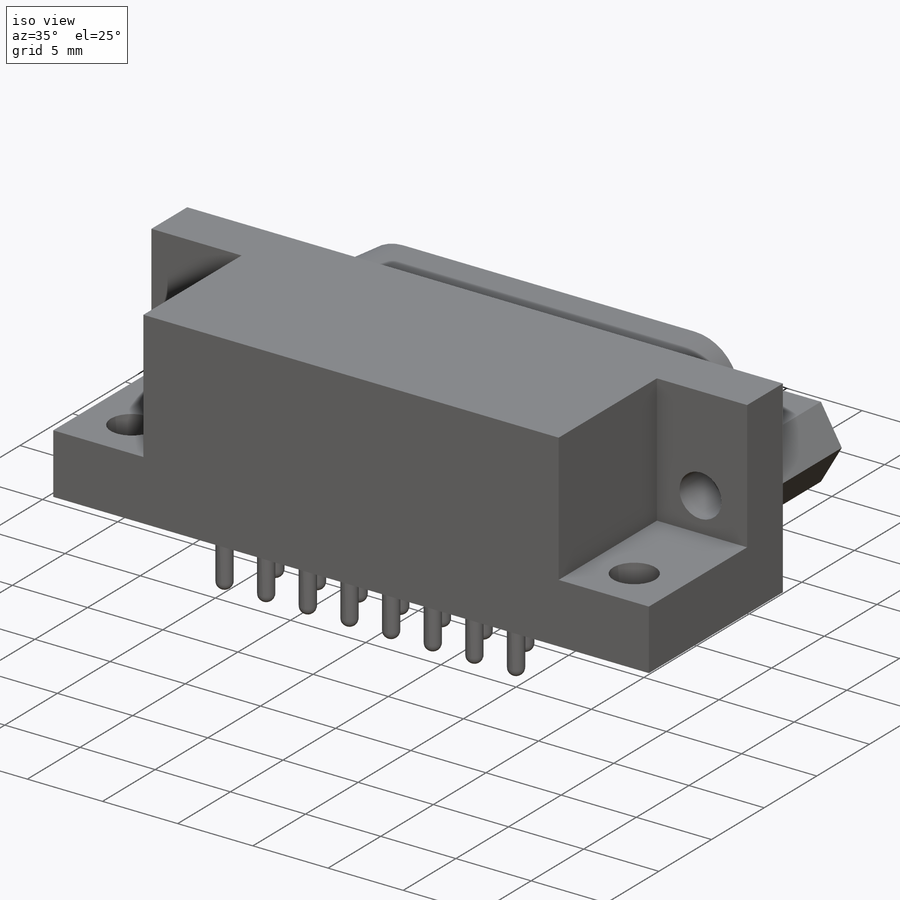
[diagram: iso view]
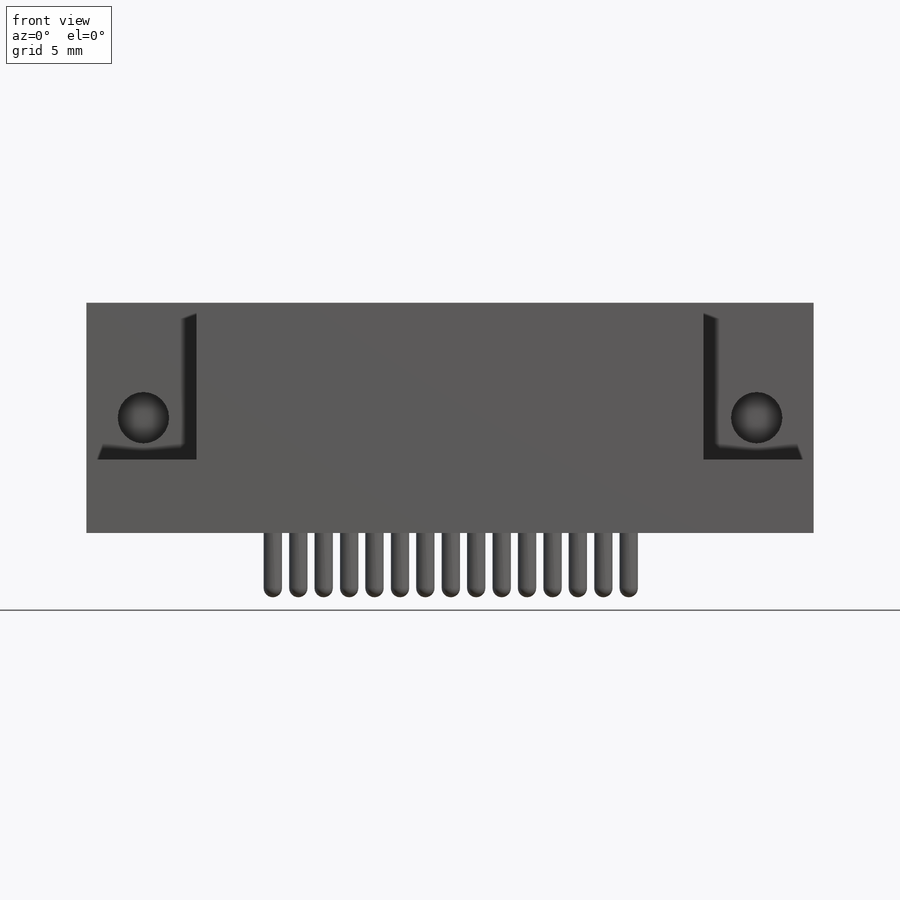
[diagram: front view]
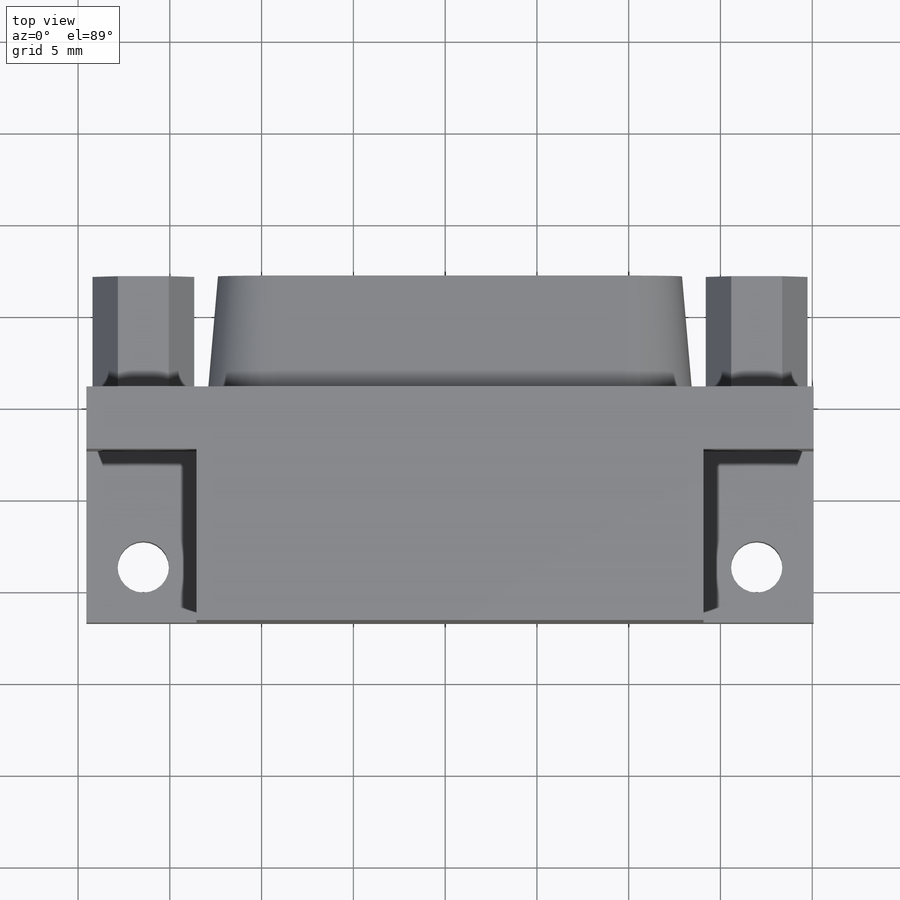
[diagram: top view]
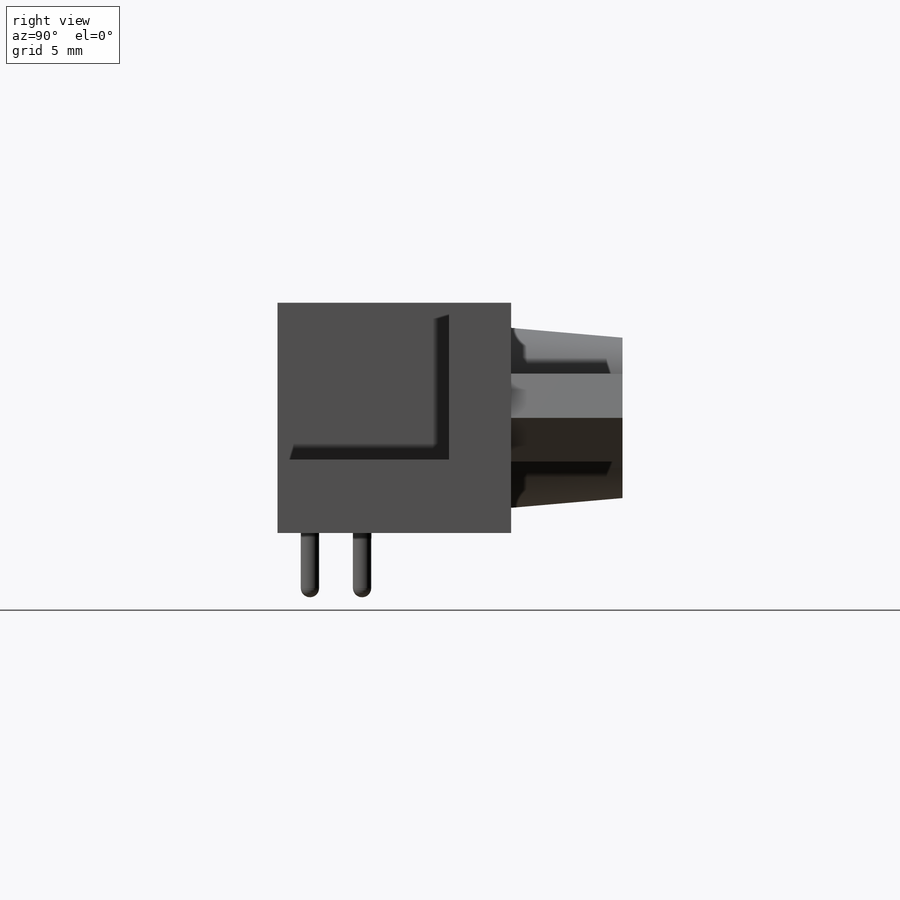
[diagram: right view]
SOLIDWORKS PART (.sldprt)
format: sldprt  version: not decoded by parser v0  size: 619,008 bytes
history: native  units: mm
features: sketch x17, extrude x8, cut_extrude x7, pattern_linear x6, dome x4, material x1, plane x1, mirror x1 (+12 scaffold rows collapsed)
feature tree (57):
  scaffold x12  (default folders/planes/origin — collapsed)
  material  "Material <not specified>"
  sketch  "Sketch1"  dims[c1.D1=10.074mm c1.D2=12.55mm c1.D3=31.314mm c1.D4=1.77mm c2.D3=39.62mm]
  extrude  "Base-Extrude"  Depth=1.77mm
  sketch  "Sketch2"  dims[D1=7.56mm D2=4.074mm D3=7.0mm D4=10.0mm]
  cut_extrude  "Cut-Extrude1"  Depth=8.55mm
  sketch  "Center Sk"
  sketch  "Sketch4"  dims[D3=2.8mm D1=6.975mm D2=1.27mm]
  cut_extrude  "Cut-Extrude3"  [1 undecoded]
  sketch  "Sketch5"  dims[D1=2.8mm D2=6.97mm D3=6.275mm]
  cut_extrude  "Cut-Extrude4"  Depth=3mm
  sketch  "Sketch6"  dims[D1=4.8mm D2=4.8mm]
  extrude  "Boss-Extrude1"  Depth=6.07mm
  sketch  "Sketch7"
  cut_extrude  "Cut-Extrude5"  Depth=6.07mm
  plane  "Centreline Plane"
  mirror  "Mirror1"
  sketch  "Sketch8"  dims[c1.D3=3.4811mm c1.D6=3.4811mm c1.D1=8.31mm c1.D2=9.695mm c2.D3=~4.324326mm c2.D4=1.3739mm c2.D5=1.3739mm c2.D6=0.4mm]
  extrude  "Boss-Extrude3"  Depth=6.07mm
  sketch  "Sketch12"  dims[D1=0.4mm]
  cut_extrude  "Cut-Extrude7"  Depth=6.07mm
  sketch  "Sketch13"  dims[D1=0.5411mm]
  extrude  "Boss-Extrude4"  Depth=0.6mm
  sketch  "Sketch14"  dims[D1=1.5mm]
  cut_extrude  "Cut-Extrude8"  [1 undecoded]
  pattern_linear  "LPattern1"  Count1=7 Count2=1 Spacing1=2.77mm Spacing2=50mm
  sketch  "Sketch15"  dims[D1=1.5mm]
  cut_extrude  "Cut-Extrude9"  [1 undecoded]
  pattern_linear  "LPattern2"  Count1=8 Count2=1 Spacing1=2.77mm Spacing2=50mm
  sketch  "Sketch16"  dims[D1=1.0mm]
  extrude  "Boss-Extrude5"  Depth=4.6mm
  dome  "Dome1"
  pattern_linear  "LPattern3"  Count1=7 Count2=1 Spacing1=2.77mm Spacing2=2.84mm
  sketch  "Sketch17"  dims[D1=1.0mm]
  extrude  "Boss-Extrude6"  Depth=4.6mm
  dome  "Dome2"
  pattern_linear  "LPattern5"  Count1=8 Count2=1 Spacing1=2.77mm Spacing2=2.84mm
  sketch  "Sketch18"  dims[D1=4.074mm]
  extrude  "Boss-Extrude7"  Depth=3mm
  dome  "Dome3"
  pattern_linear  "LPattern7"  Count1=8 Count2=1 Spacing1=2.77mm Spacing2=2.84mm
  sketch  "Sketch19"  dims[D2=1.0mm D1=2.84mm D3=1.38mm]
  extrude  "Boss-Extrude8"  Depth=3mm
  dome  "Dome4"
  pattern_linear  "LPattern9"  Count1=7 Count2=1 Spacing1=2.77mm Spacing2=2.84mm
  sketch  "Component_Outline"
decode coverage: 32 of 43 modeling features carry decoded parameters
note: ~ marks probable driven/reference dimensions
note: 3 parameter values undecoded
summary: no parameter record found for 3 features
note: suppression state not decoded; provenance and decode notes live in map.json
